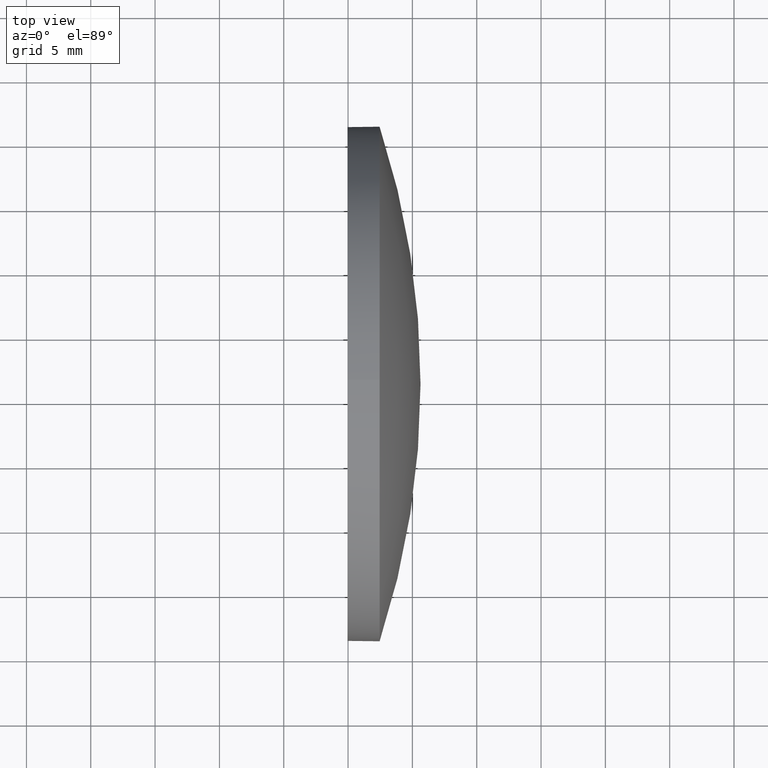
[diagram: clean part render]
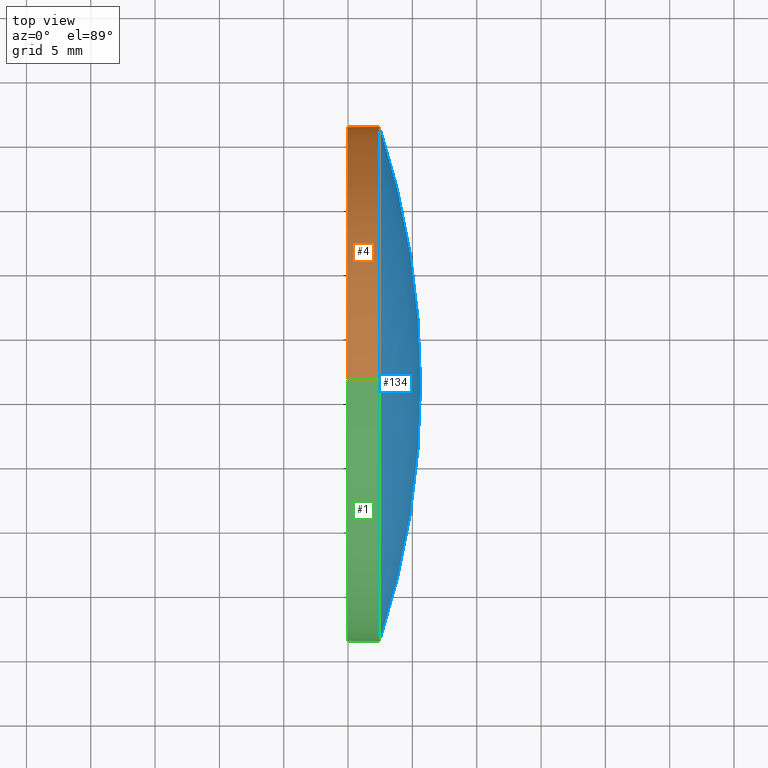
[diagram: same view with three faces highlighted in distinct colors, each labeled with its STEP entity id]
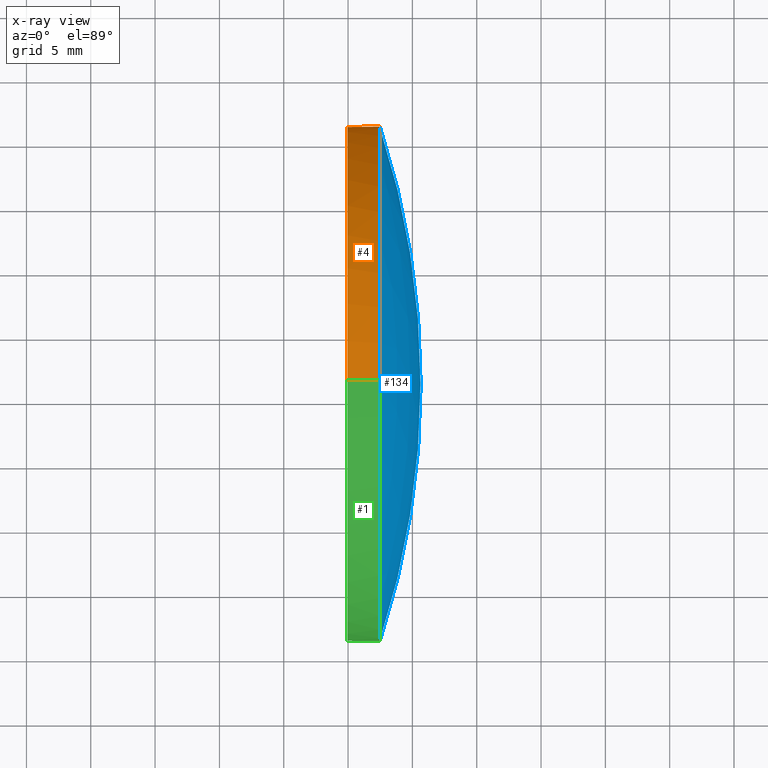
[diagram: x-ray of the same camera — body ghosted, the three highlighted faces saturated]
A machine part, top view with three faces highlighted in distinct colors.
The next image is the same camera in x-ray (body ghosted, the three faces saturated) — at least one of them is partly hidden behind the body in this view.
Their STEP definitions:

[orange] entity #4 — the highlighted cylindrical surface (partial cylindrical patch) has radius 20 mm, axis along (-1, -0, -0).
#4 = ADVANCED_FACE ( 'NONE', ( #165 ), #160, .T. ) ;
#6 = AXIS2_PLACEMENT_3D ( 'NONE', #131, #169, #168 ) ;
#9 = CIRCLE ( 'NONE', #6, 19.99999999999998900 ) ;
#18 = EDGE_CURVE ( 'NONE', #38, #173, #52, .T. ) ;
#19 = CARTESIAN_POINT ( 'NONE',  ( 572.4530136737812400, 216.2326757458980900, 0.0000000000000000000 ) ) ;
#20 = EDGE_CURVE ( 'NONE', #93, #38, #34, .T. ) ;
#21 = CARTESIAN_POINT ( 'NONE',  ( 572.4530136737812400, 216.2326757458980900, 0.0000000000000000000 ) ) ;
#34 = CIRCLE ( 'NONE', #50, 19.99999999999998900 ) ;
#35 = DIRECTION ( 'NONE',  ( 0.0000000000000000000, 0.0000000000000000000, 1.000000000000000000 ) ) ;
#37 = DIRECTION ( 'NONE',  ( -1.000000000000000000, -0.0000000000000000000, -0.0000000000000000000 ) ) ;
#38 = VERTEX_POINT ( 'NONE', #97 ) ;
#41 = CARTESIAN_POINT ( 'NONE',  ( 560.4465163540080500, 216.2326757458980900, -19.99999999999998900 ) ) ;
#50 = AXIS2_PLACEMENT_3D ( 'NONE', #19, #56, #35 ) ;
#52 = CIRCLE ( 'NONE', #99, 19.99999999999998900 ) ;
#55 = LINE ( 'NONE', #41, #161 ) ;
#56 = DIRECTION ( 'NONE',  ( -1.000000000000000000, -0.0000000000000000000, -0.0000000000000000000 ) ) ;
#63 = VERTEX_POINT ( 'NONE', #154 ) ;
#74 = CARTESIAN_POINT ( 'NONE',  ( 560.4465163540080500, 216.2326757458980900, 19.99999999999998900 ) ) ;
#80 = EDGE_CURVE ( 'NONE', #140, #63, #9, .T. ) ;
#82 = DIRECTION ( 'NONE',  ( -1.000000000000000000, -0.0000000000000000000, -0.0000000000000000000 ) ) ;
#85 = DIRECTION ( 'NONE',  ( 0.0000000000000000000, 0.0000000000000000000, 1.000000000000000000 ) ) ;
#90 = AXIS2_PLACEMENT_3D ( 'NONE', #178, #82, #110 ) ;
#93 = VERTEX_POINT ( 'NONE', #130 ) ;
#97 = CARTESIAN_POINT ( 'NONE',  ( 572.4530136737812400, 236.2326757458980900, 0.0000000000000000000 ) ) ;
#99 = AXIS2_PLACEMENT_3D ( 'NONE', #21, #180, #85 ) ;
#100 = DIRECTION ( 'NONE',  ( -1.000000000000000000, -0.0000000000000000000, -0.0000000000000000000 ) ) ;
#107 = ORIENTED_EDGE ( 'NONE', *, *, #18, .T. ) ;
#109 = ORIENTED_EDGE ( 'NONE', *, *, #122, .F. ) ;
#110 = DIRECTION ( 'NONE',  ( 0.0000000000000000000, 0.0000000000000000000, 1.000000000000000000 ) ) ;
#121 = VECTOR ( 'NONE', #100, 1000.000000000000000 ) ;
#122 = EDGE_CURVE ( 'NONE', #93, #140, #148, .T. ) ;
#130 = CARTESIAN_POINT ( 'NONE',  ( 572.4530136737812400, 216.2326757458980900, 19.99999999999998900 ) ) ;
#131 = CARTESIAN_POINT ( 'NONE',  ( 569.9530136737812400, 216.2326757458980900, 0.0000000000000000000 ) ) ;
#132 = CARTESIAN_POINT ( 'NONE',  ( 569.9530136737812400, 216.2326757458980900, 19.99999999999998900 ) ) ;
#137 = EDGE_CURVE ( 'NONE', #173, #63, #55, .T. ) ;
#140 = VERTEX_POINT ( 'NONE', #132 ) ;
#146 = ORIENTED_EDGE ( 'NONE', *, *, #20, .T. ) ;
#148 = LINE ( 'NONE', #74, #121 ) ;
#153 = ORIENTED_EDGE ( 'NONE', *, *, #137, .T. ) ;
#154 = CARTESIAN_POINT ( 'NONE',  ( 569.9530136737812400, 216.2326757458980900, -19.99999999999998900 ) ) ;
#157 = ORIENTED_EDGE ( 'NONE', *, *, #80, .F. ) ;
#158 = CARTESIAN_POINT ( 'NONE',  ( 572.4530136737812400, 216.2326757458980900, -19.99999999999998900 ) ) ;
#160 = CYLINDRICAL_SURFACE ( 'NONE', #90, 19.99999999999998900 ) ;
#161 = VECTOR ( 'NONE', #37, 1000.000000000000000 ) ;
#162 = EDGE_LOOP ( 'NONE', ( #107, #153, #157, #109, #146 ) ) ;
#165 = FACE_OUTER_BOUND ( 'NONE', #162, .T. ) ;
#168 = DIRECTION ( 'NONE',  ( 0.0000000000000000000, 0.0000000000000000000, 1.000000000000000000 ) ) ;
#169 = DIRECTION ( 'NONE',  ( -1.000000000000000000, -0.0000000000000000000, -0.0000000000000000000 ) ) ;
#173 = VERTEX_POINT ( 'NONE', #158 ) ;
#178 = CARTESIAN_POINT ( 'NONE',  ( 560.4465163540080500, 216.2326757458980900, 0.0000000000000000000 ) ) ;
#180 = DIRECTION ( 'NONE',  ( -1.000000000000000000, -0.0000000000000000000, -0.0000000000000000000 ) ) ;

[blue] entity #134 — the highlighted spherical surface has radius 64.4831 mm.
#3 = FACE_OUTER_BOUND ( 'NONE', #111, .T. ) ;
#17 = ORIENTED_EDGE ( 'NONE', *, *, #65, .F. ) ;
#19 = CARTESIAN_POINT ( 'NONE',  ( 572.4530136737812400, 216.2326757458980900, 0.0000000000000000000 ) ) ;
#20 = EDGE_CURVE ( 'NONE', #93, #38, #34, .T. ) ;
#24 = ORIENTED_EDGE ( 'NONE', *, *, #96, .F. ) ;
#25 = DIRECTION ( 'NONE',  ( 1.000000000000000000, 0.0000000000000000000, 0.0000000000000000000 ) ) ;
#26 = SPHERICAL_SURFACE ( 'NONE', #31, 64.48308176100613300 ) ;
#28 = VERTEX_POINT ( 'NONE', #124 ) ;
#31 = AXIS2_PLACEMENT_3D ( 'NONE', #102, #89, #114 ) ;
#32 = CIRCLE ( 'NONE', #126, 64.48308176100611900 ) ;
#34 = CIRCLE ( 'NONE', #50, 19.99999999999998900 ) ;
#35 = DIRECTION ( 'NONE',  ( 0.0000000000000000000, 0.0000000000000000000, 1.000000000000000000 ) ) ;
#38 = VERTEX_POINT ( 'NONE', #97 ) ;
#39 = DIRECTION ( 'NONE',  ( -1.000000000000000000, -0.0000000000000000000, -0.0000000000000000000 ) ) ;
#40 = CIRCLE ( 'NONE', #77, 64.48308176100614700 ) ;
#48 = EDGE_CURVE ( 'NONE', #28, #38, #40, .T. ) ;
#50 = AXIS2_PLACEMENT_3D ( 'NONE', #19, #56, #35 ) ;
#56 = DIRECTION ( 'NONE',  ( -1.000000000000000000, -0.0000000000000000000, -0.0000000000000000000 ) ) ;
#65 = EDGE_CURVE ( 'NONE', #28, #84, #32, .T. ) ;
#69 = AXIS2_PLACEMENT_3D ( 'NONE', #87, #39, #185 ) ;
#70 = CARTESIAN_POINT ( 'NONE',  ( 572.4530136737812400, 196.2326757458979500, -2.449293598294707300E-015 ) ) ;
#71 = CARTESIAN_POINT ( 'NONE',  ( 511.1499319127751200, 216.2326757458979800, 0.0000000000000000000 ) ) ;
#73 = DIRECTION ( 'NONE',  ( -0.0000000000000000000, 0.0000000000000000000, 1.000000000000000000 ) ) ;
#77 = AXIS2_PLACEMENT_3D ( 'NONE', #71, #73, #25 ) ;
#79 = ORIENTED_EDGE ( 'NONE', *, *, #20, .F. ) ;
#84 = VERTEX_POINT ( 'NONE', #70 ) ;
#87 = CARTESIAN_POINT ( 'NONE',  ( 572.4530136737812400, 216.2326757458980900, 0.0000000000000000000 ) ) ;
#89 = DIRECTION ( 'NONE',  ( -0.0000000000000000000, 0.0000000000000000000, -1.000000000000000000 ) ) ;
#93 = VERTEX_POINT ( 'NONE', #130 ) ;
#96 = EDGE_CURVE ( 'NONE', #84, #93, #139, .T. ) ;
#97 = CARTESIAN_POINT ( 'NONE',  ( 572.4530136737812400, 236.2326757458980900, 0.0000000000000000000 ) ) ;
#102 = CARTESIAN_POINT ( 'NONE',  ( 511.1499319127751200, 216.2326757458979800, 0.0000000000000000000 ) ) ;
#111 = EDGE_LOOP ( 'NONE', ( #17, #170, #79, #24 ) ) ;
#114 = DIRECTION ( 'NONE',  ( 0.0000000000000000000, 1.000000000000000000, 0.0000000000000000000 ) ) ;
#124 = CARTESIAN_POINT ( 'NONE',  ( 575.6330136737813100, 216.2326757458979800, 0.0000000000000000000 ) ) ;
#126 = AXIS2_PLACEMENT_3D ( 'NONE', #129, #156, #159 ) ;
#129 = CARTESIAN_POINT ( 'NONE',  ( 511.1499319127751200, 216.2326757458979800, 0.0000000000000000000 ) ) ;
#130 = CARTESIAN_POINT ( 'NONE',  ( 572.4530136737812400, 216.2326757458980900, 19.99999999999998900 ) ) ;
#134 = ADVANCED_FACE ( 'NONE', ( #3 ), #26, .T. ) ;
#139 = CIRCLE ( 'NONE', #69, 19.99999999999998900 ) ;
#156 = DIRECTION ( 'NONE',  ( 0.0000000000000000000, 1.224646799147353200E-016, -1.000000000000000000 ) ) ;
#159 = DIRECTION ( 'NONE',  ( 0.0000000000000000000, 1.000000000000000000, 1.224646799147353200E-016 ) ) ;
#170 = ORIENTED_EDGE ( 'NONE', *, *, #48, .T. ) ;
#185 = DIRECTION ( 'NONE',  ( 0.0000000000000000000, 0.0000000000000000000, 1.000000000000000000 ) ) ;

[green] entity #1 — the highlighted cylindrical surface (partial cylindrical patch) has radius 20 mm, axis along (-1, -0, -0).
#1 = ADVANCED_FACE ( 'NONE', ( #58 ), #98, .T. ) ;
#37 = DIRECTION ( 'NONE',  ( -1.000000000000000000, -0.0000000000000000000, -0.0000000000000000000 ) ) ;
#39 = DIRECTION ( 'NONE',  ( -1.000000000000000000, -0.0000000000000000000, -0.0000000000000000000 ) ) ;
#41 = CARTESIAN_POINT ( 'NONE',  ( 560.4465163540080500, 216.2326757458980900, -19.99999999999998900 ) ) ;
#42 = CARTESIAN_POINT ( 'NONE',  ( 572.4530136737812400, 216.2326757458980900, 0.0000000000000000000 ) ) ;
#46 = ORIENTED_EDGE ( 'NONE', *, *, #96, .T. ) ;
#55 = LINE ( 'NONE', #41, #161 ) ;
#58 = FACE_OUTER_BOUND ( 'NONE', #120, .T. ) ;
#59 = DIRECTION ( 'NONE',  ( 0.0000000000000000000, 0.0000000000000000000, 1.000000000000000000 ) ) ;
#63 = VERTEX_POINT ( 'NONE', #154 ) ;
#64 = EDGE_CURVE ( 'NONE', #63, #140, #133, .T. ) ;
#67 = DIRECTION ( 'NONE',  ( -1.000000000000000000, -0.0000000000000000000, -0.0000000000000000000 ) ) ;
#69 = AXIS2_PLACEMENT_3D ( 'NONE', #87, #39, #185 ) ;
#70 = CARTESIAN_POINT ( 'NONE',  ( 572.4530136737812400, 196.2326757458979500, -2.449293598294707300E-015 ) ) ;
#72 = ORIENTED_EDGE ( 'NONE', *, *, #122, .T. ) ;
#74 = CARTESIAN_POINT ( 'NONE',  ( 560.4465163540080500, 216.2326757458980900, 19.99999999999998900 ) ) ;
#76 = AXIS2_PLACEMENT_3D ( 'NONE', #182, #88, #59 ) ;
#84 = VERTEX_POINT ( 'NONE', #70 ) ;
#87 = CARTESIAN_POINT ( 'NONE',  ( 572.4530136737812400, 216.2326757458980900, 0.0000000000000000000 ) ) ;
#88 = DIRECTION ( 'NONE',  ( -1.000000000000000000, -0.0000000000000000000, -0.0000000000000000000 ) ) ;
#93 = VERTEX_POINT ( 'NONE', #130 ) ;
#96 = EDGE_CURVE ( 'NONE', #84, #93, #139, .T. ) ;
#98 = CYLINDRICAL_SURFACE ( 'NONE', #163, 19.99999999999998900 ) ;
#100 = DIRECTION ( 'NONE',  ( -1.000000000000000000, -0.0000000000000000000, -0.0000000000000000000 ) ) ;
#113 = DIRECTION ( 'NONE',  ( 0.0000000000000000000, 0.0000000000000000000, 1.000000000000000000 ) ) ;
#116 = ORIENTED_EDGE ( 'NONE', *, *, #64, .F. ) ;
#120 = EDGE_LOOP ( 'NONE', ( #186, #175, #46, #72, #116 ) ) ;
#121 = VECTOR ( 'NONE', #100, 1000.000000000000000 ) ;
#122 = EDGE_CURVE ( 'NONE', #93, #140, #148, .T. ) ;
#127 = CIRCLE ( 'NONE', #172, 19.99999999999998900 ) ;
#130 = CARTESIAN_POINT ( 'NONE',  ( 572.4530136737812400, 216.2326757458980900, 19.99999999999998900 ) ) ;
#132 = CARTESIAN_POINT ( 'NONE',  ( 569.9530136737812400, 216.2326757458980900, 19.99999999999998900 ) ) ;
#133 = CIRCLE ( 'NONE', #76, 19.99999999999998900 ) ;
#137 = EDGE_CURVE ( 'NONE', #173, #63, #55, .T. ) ;
#138 = EDGE_CURVE ( 'NONE', #173, #84, #127, .T. ) ;
#139 = CIRCLE ( 'NONE', #69, 19.99999999999998900 ) ;
#140 = VERTEX_POINT ( 'NONE', #132 ) ;
#148 = LINE ( 'NONE', #74, #121 ) ;
#154 = CARTESIAN_POINT ( 'NONE',  ( 569.9530136737812400, 216.2326757458980900, -19.99999999999998900 ) ) ;
#155 = CARTESIAN_POINT ( 'NONE',  ( 560.4465163540080500, 216.2326757458980900, 0.0000000000000000000 ) ) ;
#158 = CARTESIAN_POINT ( 'NONE',  ( 572.4530136737812400, 216.2326757458980900, -19.99999999999998900 ) ) ;
#161 = VECTOR ( 'NONE', #37, 1000.000000000000000 ) ;
#163 = AXIS2_PLACEMENT_3D ( 'NONE', #155, #67, #177 ) ;
#172 = AXIS2_PLACEMENT_3D ( 'NONE', #42, #184, #113 ) ;
#173 = VERTEX_POINT ( 'NONE', #158 ) ;
#175 = ORIENTED_EDGE ( 'NONE', *, *, #138, .T. ) ;
#177 = DIRECTION ( 'NONE',  ( 0.0000000000000000000, 0.0000000000000000000, 1.000000000000000000 ) ) ;
#182 = CARTESIAN_POINT ( 'NONE',  ( 569.9530136737812400, 216.2326757458980900, 0.0000000000000000000 ) ) ;
#184 = DIRECTION ( 'NONE',  ( -1.000000000000000000, -0.0000000000000000000, -0.0000000000000000000 ) ) ;
#185 = DIRECTION ( 'NONE',  ( 0.0000000000000000000, 0.0000000000000000000, 1.000000000000000000 ) ) ;
#186 = ORIENTED_EDGE ( 'NONE', *, *, #137, .F. ) ;